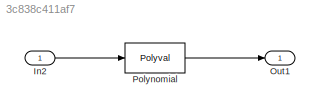
MODEL slx_3c838c411af7
KIND model
CONFIG AbsTol = auto
CONFIG EnableMultiTasking = on
CONFIG FixedStep = 0.200000
CONFIG MaxStep = auto
CONFIG MinStep = auto
CONFIG RelTol = 1e-3
CONFIG SampleTimeConstraint = Unconstrained
CONFIG Solver = FixedStepDiscrete
CONFIG SolverName = FixedStepDiscrete
CONFIG StartTime = 0.0
CONFIG StopTime = 19.8
BLOCK [Inport] In2
  IconDisplay = Port number
  PortDimensions = [2 3]
BLOCK [Outport] Out1
  IconDisplay = Port number
BLOCK [Polyval] Polynomial
  Coefs = [ +2.081618890e-019, -1.441693666e-014, +4.719686976e-010, -8.536869453e-006, +1.621573104e-001, -8.087801117e+001 ]
LINE In2:1 -> Polynomial:1
LINE Polynomial:1 -> Out1:1
